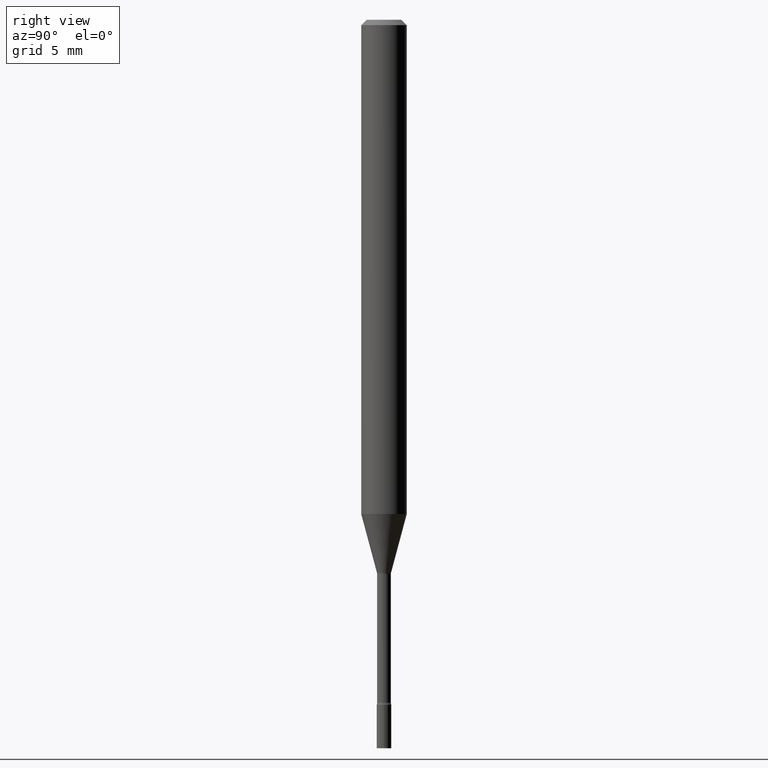
[diagram: clean part render]
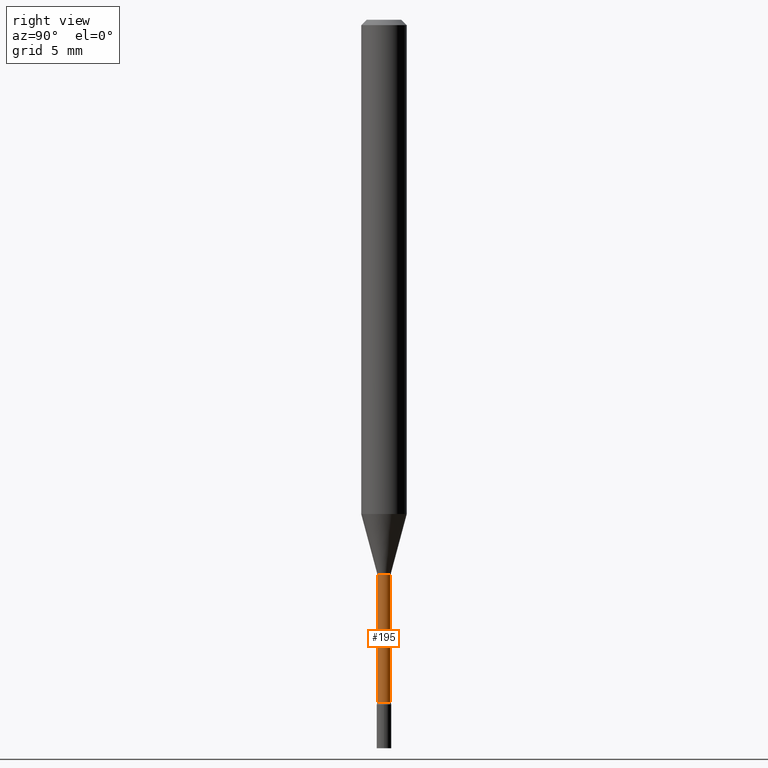
[diagram: same view with one face highlighted and labeled with its STEP entity id]
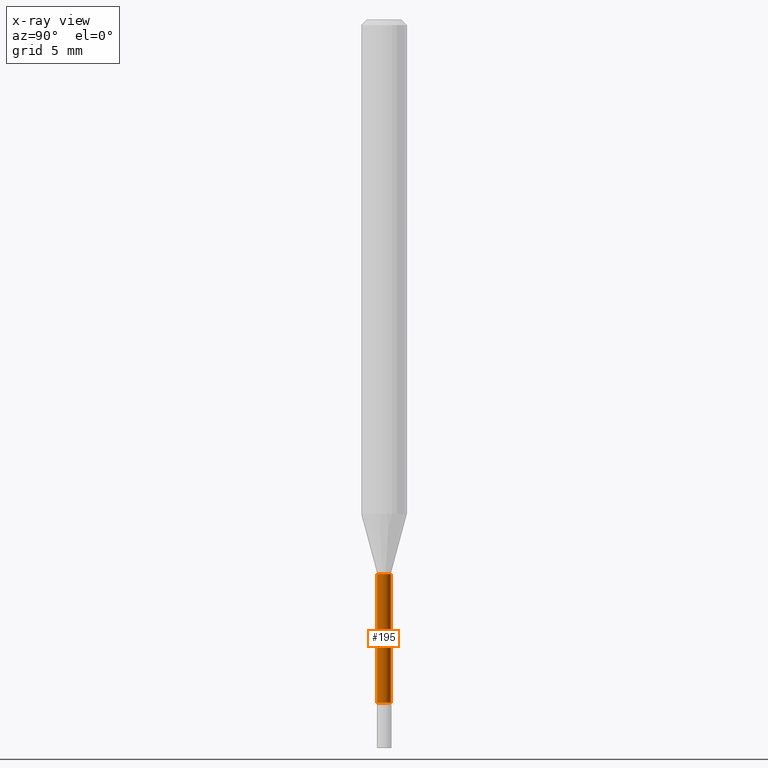
[diagram: x-ray of the same camera — body ghosted, the highlighted face saturated]
A machine part, right view. The second image highlights one B-rep face of the part: STEP entity #195.
The next image is the same camera in x-ray: the body ghosted, the highlighted face saturated — about 0% of this face is hidden behind the body in this view.
In plain terms, the highlighted cylindrical surface (edge-blend (fillet) strip) has radius 0.4775 mm, axis along (-0, 0, 1).
Its self-contained STEP definition (entity closure, byte-faithful):
#3 = CIRCLE ( 'NONE', #325, 0.01880000000000012564 ) ;
#6 = CYLINDRICAL_SURFACE ( 'NONE', #468, 0.01880000000000006319 ) ;
#7 = EDGE_CURVE ( 'NONE', #196, #336, #495, .T. ) ;
#18 = EDGE_CURVE ( 'NONE', #336, #132, #486, .T. ) ;
#105 = EDGE_LOOP ( 'NONE', ( #430, #255, #510, #367 ) ) ;
#121 = DIRECTION ( 'NONE',  ( -6.982962677686265133E-15, -1.000000000000000000, 3.491429355397911828E-15 ) ) ;
#126 = DIRECTION ( 'NONE',  ( -6.982962677686265922E-15, -1.000000000000000000, 0.000000000000000000 ) ) ;
#132 = VERTEX_POINT ( 'NONE', #452 ) ;
#140 = AXIS2_PLACEMENT_3D ( 'NONE', #372, #437, #126 ) ;
#158 = FACE_OUTER_BOUND ( 'NONE', #105, .T. ) ;
#179 = EDGE_CURVE ( 'NONE', #196, #192, #3, .T. ) ;
#192 = VERTEX_POINT ( 'NONE', #412 ) ;
#195 = ADVANCED_FACE ( 'NONE', ( #158 ), #6, .T. ) ;
#196 = VERTEX_POINT ( 'NONE', #203 ) ;
#203 = CARTESIAN_POINT ( 'NONE',  ( -1.312796983404568611E-16, -0.01880000000000666902, -1.874121224617320669 ) ) ;
#205 = DIRECTION ( 'NONE',  ( -2.445505106030928727E-29, 3.491429355397911828E-15, 1.000000000000000000 ) ) ;
#250 = DIRECTION ( 'NONE',  ( -2.445505106030929007E-29, 3.491429355397911828E-15, 1.000000000000000000 ) ) ;
#255 = ORIENTED_EDGE ( 'NONE', *, *, #518, .T. ) ;
#271 = VECTOR ( 'NONE', #205, 39.37007874015748143 ) ;
#311 = DIRECTION ( 'NONE',  ( -2.445505106030928727E-29, 3.491429355397911828E-15, 1.000000000000000000 ) ) ;
#312 = CARTESIAN_POINT ( 'NONE',  ( 1.335820343228992593E-16, 0.01880000000000006319, -6.563887188148095939E-17 ) ) ;
#325 = AXIS2_PLACEMENT_3D ( 'NONE', #455, #329, #363 ) ;
#329 = DIRECTION ( 'NONE',  ( -2.445505106030929007E-29, 3.491429355397911828E-15, 1.000000000000000000 ) ) ;
#336 = VERTEX_POINT ( 'NONE', #494 ) ;
#340 = CARTESIAN_POINT ( 'NONE',  ( -1.312796983405022206E-16, -0.01880000000000006319, 6.563887188148095939E-17 ) ) ;
#363 = DIRECTION ( 'NONE',  ( -6.982962677686266711E-15, -1.000000000000000000, 0.000000000000000000 ) ) ;
#367 = ORIENTED_EDGE ( 'NONE', *, *, #7, .F. ) ;
#370 = CARTESIAN_POINT ( 'NONE',  ( 0.000000000000000000, 0.000000000000000000, 0.000000000000000000 ) ) ;
#372 = CARTESIAN_POINT ( 'NONE',  ( 3.721997113993087725E-29, -5.313867451126648157E-15, -1.521974787463810985 ) ) ;
#412 = CARTESIAN_POINT ( 'NONE',  ( 1.378452907375054899E-16, 0.01879999999999358226, -1.874121224617320669 ) ) ;
#430 = ORIENTED_EDGE ( 'NONE', *, *, #179, .T. ) ;
#436 = LINE ( 'NONE', #312, #457 ) ;
#437 = DIRECTION ( 'NONE',  ( -2.445505106030929007E-29, 3.491429355397911828E-15, 1.000000000000000000 ) ) ;
#452 = CARTESIAN_POINT ( 'NONE',  ( 1.335820343229449392E-16, 0.01879999999999468902, -1.521974787463810985 ) ) ;
#455 = CARTESIAN_POINT ( 'NONE',  ( 4.583173024122595615E-29, -6.543361859203197978E-15, -1.874121224617320669 ) ) ;
#457 = VECTOR ( 'NONE', #311, 39.37007874015748143 ) ;
#468 = AXIS2_PLACEMENT_3D ( 'NONE', #370, #250, #121 ) ;
#486 = CIRCLE ( 'NONE', #140, 0.01880000000000000074 ) ;
#494 = CARTESIAN_POINT ( 'NONE',  ( -1.312796983404646018E-16, -0.01880000000000531593, -1.521974787463810985 ) ) ;
#495 = LINE ( 'NONE', #340, #271 ) ;
#510 = ORIENTED_EDGE ( 'NONE', *, *, #18, .F. ) ;
#518 = EDGE_CURVE ( 'NONE', #192, #132, #436, .T. ) ;